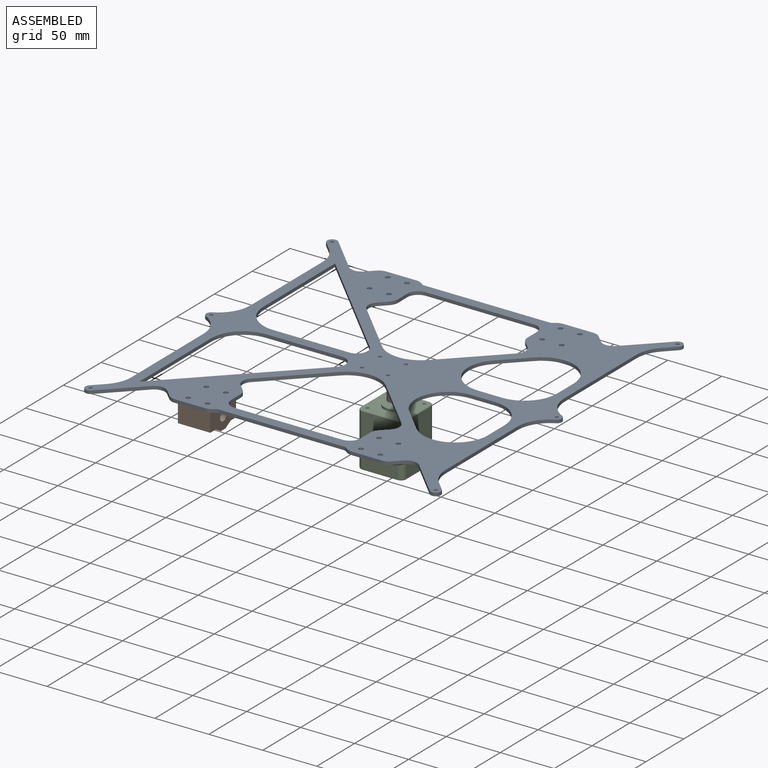
[diagram: assembled view]
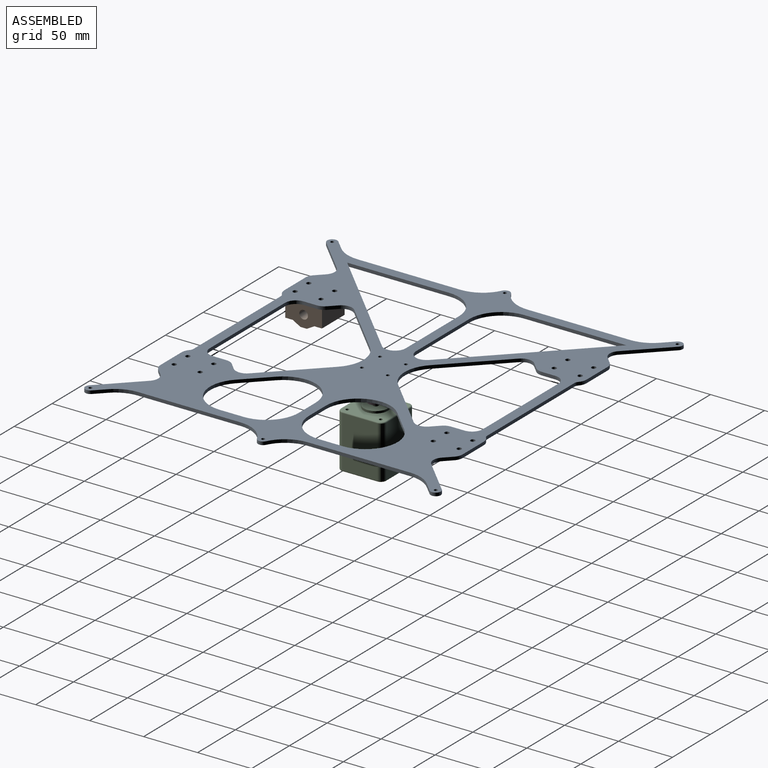
[diagram: assembled view, second angle]
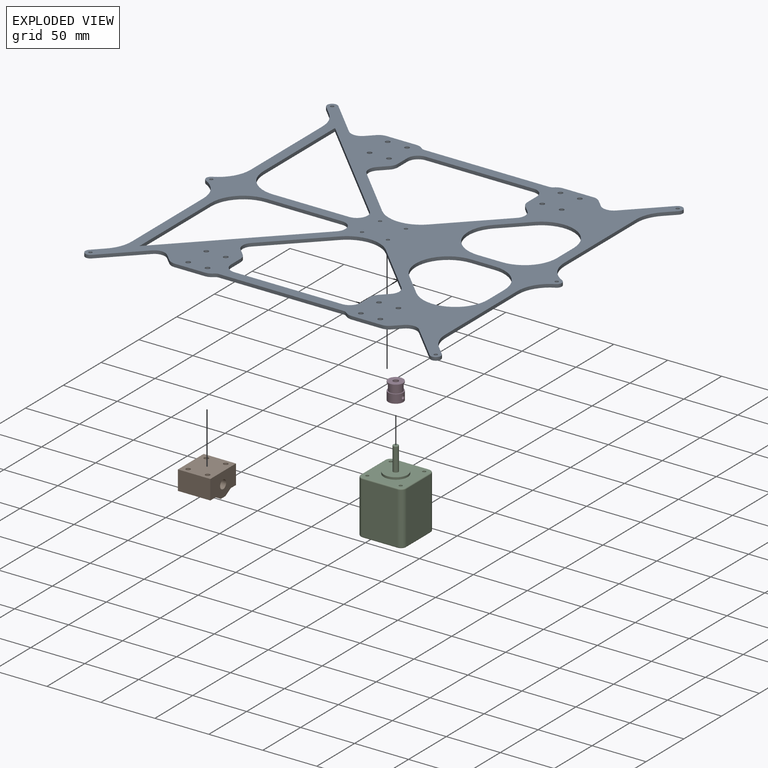
[diagram: exploded view]
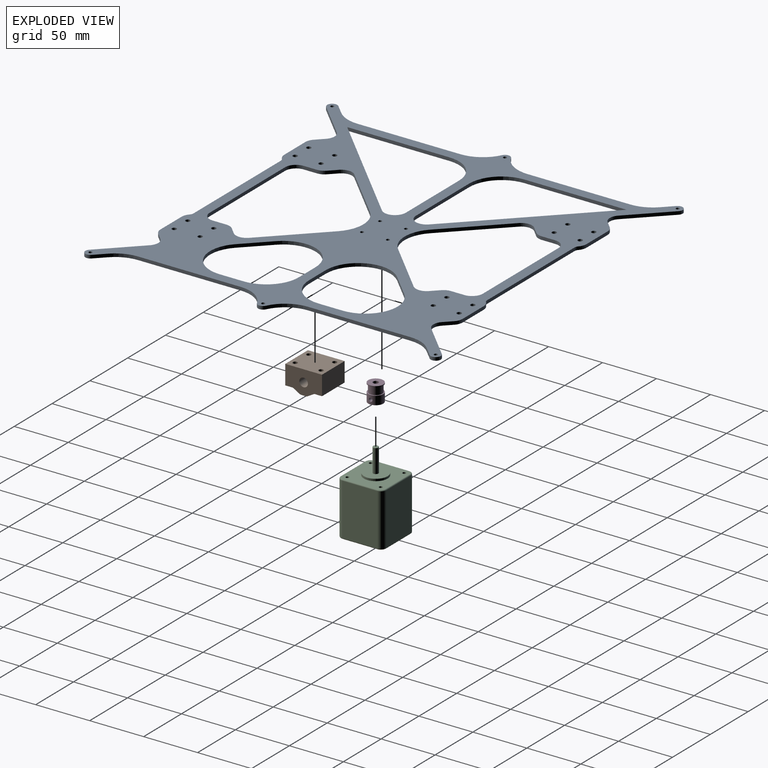
[diagram: exploded view, second angle]
ASSEMBLY  parts=4 mates=3
PART A: 130 faces, bbox 329.4x329.4x3 mm
  f0: plane 22.23x22.23mm, normal (0.71,0.71,0), area 94.3mm2, adj f32,f33,f55,f59
  f1: plane 22.23x3mm, normal (0,-1,0), area 66.7mm2, adj f32,f33,f55,f56
  f2: plane 70.51x3mm, normal (0,-1,0), area 211.5mm2, adj f32,f33,f58,f63
  f3: plane 107.58x107.58mm, normal (-0.71,0.71,0), area 456.4mm2, adj f28,f32,f33,f63
  f4: plane 48.39x48.39mm, normal (0.71,-0.71,0), area 205.3mm2, adj f32,f33,f42,f54
  f5: plane 48.39x48.39mm, normal (-0.71,-0.71,0), area 205.3mm2, adj f32,f33,f50,f54
  f6: plane 6.68x6.68mm, normal (-0.71,0.71,0), area 28.3mm2, adj f32,f33,f49,f50
  f7: plane 12.46x3mm, normal (-1,0,0), area 37.4mm2, adj f32,f33,f49,f53
  f8: plane 100x3mm, normal (0,1,0), area 300mm2, adj f32,f33,f52,f53
  f9: plane 12.46x3mm, normal (1,0,0), area 37.4mm2, adj f32,f33,f44,f52
  f10: plane 32.93x32.93mm, normal (0.71,-0.71,0), area 139.7mm2, adj f30,f32,f33,f43
  f11: plane 6.68x6.68mm, normal (-0.71,-0.71,0), area 28.3mm2, adj f32,f33,f43,f45
  f12: plane 27.86x3mm, normal (0,-1,0), area 83.6mm2, adj f32,f33,f45,f46
  f13: plane 115.6x3mm, normal (0,-1,0), area 346.8mm2, adj f32,f33,f64,f65
  f14: plane 27.86x3mm, normal (0,-1,0), area 83.6mm2, adj f32,f33,f47,f48
  f15: plane 6.68x6.68mm, normal (0.71,-0.71,0), area 28.3mm2, adj f32,f33,f48,f51
  f16: plane 32.93x32.93mm, normal (-0.71,-0.71,0), area 139.7mm2, adj f17,f32,f33,f51
  f17: cylinder r=4.7mm len=8.02mm, axis (0,0,-1), area 44.3mm2, adj f16,f18,f32,f33
  f18: plane 9.14x9.14mm, normal (0.71,0.71,0), area 38.8mm2, adj f17,f32,f33,f61
  f19: plane 95.23x3mm, normal (1,0,0), area 285.7mm2, adj f32,f33,f61,f62
  f20: cylinder r=4.7mm len=8.42mm, axis (0,0,-1), area 31.3mm2, adj f32,f33,f62,f124
  f21: cylinder r=1.6mm len=3.2mm, axis (0,0,-1), area 30.2mm2, adj f32,f33
  f22: cylinder r=1.6mm len=3.2mm, axis (0,0,-1), area 30.2mm2, adj f32,f33
  f23: cylinder r=4.7mm len=8.42mm, axis (0,0,-1), area 31.3mm2, adj f32,f33,f60,f122
  f24: plane 95.23x3mm, normal (-1,0,0), area 285.7mm2, adj f32,f33,f57,f60
  f25: plane 9.14x9.14mm, normal (-0.71,0.71,0), area 38.8mm2, adj f30,f32,f33,f57
  f26: plane 22.23x3mm, normal (-1,0,0), area 66.7mm2, adj f32,f33,f56,f59
  f27: cylinder r=1.6mm len=3.2mm, axis (0,0,-1), area 30.2mm2, adj f32,f33
  f28: plane 94.65x3mm, normal (1,0,0), area 284mm2, adj f3,f32,f33,f58
  f29: plane 6.68x6.68mm, normal (0.71,0.71,0), area 28.3mm2, adj f32,f33,f42,f44
  f30: cylinder r=4.7mm len=8.02mm, axis (0,0,-1), area 44.3mm2, adj f10,f25,f32,f33
  f31: cylinder r=1.6mm len=3.2mm, axis (0,0,-1), area 30.2mm2, adj f32,f33
  f32: plane 329.4x329.4mm, normal (0,0,1), area 33426.8mm2, adj f0,f1,f2,f3,f4,f5,f6,f7
  f33: plane 329.4x329.4mm, normal (0,0,-1), area 33426.8mm2, adj f0,f1,f2,f3,f4,f5,f6,f7
  f34: cylinder r=2.15mm len=4.3mm, axis (0,0,-1), area 40.5mm2, adj f32,f33
  f35: cylinder r=2.15mm len=4.3mm, axis (0,0,-1), area 40.5mm2, adj f32,f33
  f36: cylinder r=2.15mm len=4.3mm, axis (0,0,-1), area 40.5mm2, adj f32,f33
  f37: cylinder r=2.15mm len=4.3mm, axis (0,0,-1), area 40.5mm2, adj f32,f33
  f38: cylinder r=2.15mm len=4.3mm, axis (0,0,-1), area 40.5mm2, adj f32,f33
  f39: cylinder r=2.15mm len=4.3mm, axis (0,0,-1), area 40.5mm2, adj f32,f33
  f40: cylinder r=2.15mm len=4.3mm, axis (0,0,-1), area 40.5mm2, adj f32,f33
  f41: cylinder r=2.15mm len=4.3mm, axis (0,0,-1), area 40.5mm2, adj f32,f33
  f42: cylinder r=10mm len=14.14mm, axis (0,0,-1), area 47.1mm2, adj f4,f29,f32,f33
  f43: cylinder r=10mm len=14.14mm, axis (0,0,1), area 47.1mm2, adj f10,f11,f32,f33
  f44: cylinder r=10mm len=7.07mm, axis (0,0,-1), area 23.6mm2, adj f9,f29,f32,f33
  f45: cylinder r=10mm len=7.07mm, axis (0,0,1), area 23.6mm2, adj f11,f12,f32,f33
  f46: cylinder r=10mm len=6.8mm, axis (0,0,1), area 22.4mm2, adj f12,f32,f33,f64
  f47: cylinder r=10mm len=6.8mm, axis (0,0,-1), area 22.4mm2, adj f14,f32,f33,f65
  f48: cylinder r=10mm len=7.07mm, axis (0,0,-1), area 23.6mm2, adj f14,f15,f32,f33
  f49: cylinder r=10mm len=7.07mm, axis (0,0,1), area 23.6mm2, adj f6,f7,f32,f33
  f50: cylinder r=10mm len=14.14mm, axis (0,0,-1), area 47.1mm2, adj f5,f6,f32,f33
  f51: cylinder r=10mm len=14.14mm, axis (0,0,1), area 47.1mm2, adj f15,f16,f32,f33
  f52: cylinder r=10mm len=10mm, axis (0,0,1), area 47.1mm2, adj f8,f9,f32,f33
  f53: cylinder r=10mm len=10mm, axis (0,0,1), area 47.1mm2, adj f7,f8,f32,f33
  f54: cylinder r=30mm len=42.43mm, axis (0,0,-1), area 141.4mm2, adj f4,f5,f32,f33
  f55: cylinder r=30mm len=51.21mm, axis (0,0,-1), area 212.1mm2, adj f0,f1,f32,f33
  f56: cylinder r=30mm len=30mm, axis (0,0,1), area 141.4mm2, adj f1,f26,f32,f33
  f57: cylinder r=30mm len=21.21mm, axis (0,0,1), area 70.7mm2, adj f24,f25,f32,f33
  f58: cylinder r=30mm len=30mm, axis (0,0,-1), area 141.4mm2, adj f2,f28,f32,f33
  f59: cylinder r=30mm len=51.21mm, axis (0,0,-1), area 212.1mm2, adj f0,f26,f32,f33
  f60: cylinder r=30mm len=26.88mm, axis (0,0,-1), area 100mm2, adj f23,f24,f32,f33
  f61: cylinder r=30mm len=21.21mm, axis (0,0,1), area 70.7mm2, adj f18,f19,f32,f33
  f62: cylinder r=30mm len=26.88mm, axis (0,0,-1), area 100mm2, adj f19,f20,f32,f33
  f63: cylinder r=10mm len=17.07mm, axis (0,0,1), area 70.7mm2, adj f2,f3,f32,f33
  f64: cylinder r=5mm len=3.4mm, axis (0,0,1), area 11.2mm2, adj f13,f32,f33,f46
  f65: cylinder r=5mm len=3.4mm, axis (0,0,-1), area 11.2mm2, adj f13,f32,f33,f47
  f66: cylinder r=1.6mm len=3.2mm, axis (0,0,-1), area 30.2mm2, adj f32,f33
  f67: cylinder r=1.6mm len=3.2mm, axis (0,0,-1), area 30.2mm2, adj f32,f33
  f68: plane 22.23x22.23mm, normal (0.71,-0.71,0), area 94.3mm2, adj f32,f33,f117,f121
  f69: plane 22.23x3mm, normal (0,1,0), area 66.7mm2, adj f32,f33,f117,f118
  f70: plane 70.51x3mm, normal (0,1,0), area 211.5mm2, adj f32,f33,f120,f125
  f71: plane 107.58x107.58mm, normal (-0.71,-0.71,0), area 456.4mm2, adj f32,f33,f92,f125
  f72: plane 48.39x48.39mm, normal (0.71,0.71,0), area 205.3mm2, adj f32,f33,f104,f116
  f73: plane 48.39x48.39mm, normal (-0.71,0.71,0), area 205.3mm2, adj f32,f33,f112,f116
  f74: plane 6.68x6.68mm, normal (-0.71,-0.71,0), area 28.3mm2, adj f32,f33,f111,f112
  f75: plane 12.46x3mm, normal (-1,0,0), area 37.4mm2, adj f32,f33,f111,f115
  f76: plane 100x3mm, normal (0,-1,0), area 300mm2, adj f32,f33,f114,f115
  f77: plane 12.46x3mm, normal (1,0,0), area 37.4mm2, adj f32,f33,f106,f114
  f78: plane 32.93x32.93mm, normal (0.71,0.71,0), area 139.7mm2, adj f32,f33,f94,f105
  f79: plane 6.68x6.68mm, normal (-0.71,0.71,0), area 28.3mm2, adj f32,f33,f105,f107
  f80: plane 27.86x3mm, normal (0,1,0), area 83.6mm2, adj f32,f33,f107,f108
  f81: plane 115.6x3mm, normal (0,1,0), area 346.8mm2, adj f32,f33,f126,f127
  f82: plane 27.86x3mm, normal (0,1,0), area 83.6mm2, adj f32,f33,f109,f110
  f83: plane 6.68x6.68mm, normal (0.71,0.71,0), area 28.3mm2, adj f32,f33,f110,f113
  f84: plane 32.93x32.93mm, normal (-0.71,0.71,0), area 139.7mm2, adj f32,f33,f85,f113
  f85: cylinder r=4.7mm len=8.02mm, axis (0,0,-1), area 44.3mm2, adj f32,f33,f84,f86
  f86: plane 9.14x9.14mm, normal (0.71,-0.71,0), area 38.8mm2, adj f32,f33,f85,f123
  f87: plane 95.23x3mm, normal (1,0,0), area 285.7mm2, adj f32,f33,f123,f124
  f88: plane 95.23x3mm, normal (-1,0,0), area 285.7mm2, adj f32,f33,f119,f122
  f89: plane 9.14x9.14mm, normal (-0.71,-0.71,0), area 38.8mm2, adj f32,f33,f94,f119
  f90: plane 22.23x3mm, normal (-1,0,0), area 66.7mm2, adj f32,f33,f118,f121
  f91: cylinder r=1.6mm len=3.2mm, axis (0,0,-1), area 30.2mm2, adj f32,f33
  f92: plane 94.65x3mm, normal (1,0,0), area 284mm2, adj f32,f33,f71,f120
  f93: plane 6.68x6.68mm, normal (0.71,-0.71,0), area 28.3mm2, adj f32,f33,f104,f106
  f94: cylinder r=4.7mm len=8.02mm, axis (0,0,-1), area 44.3mm2, adj f32,f33,f78,f89
  f95: cylinder r=1.6mm len=3.2mm, axis (0,0,-1), area 30.2mm2, adj f32,f33
  f96: cylinder r=2.15mm len=4.3mm, axis (0,0,-1), area 40.5mm2, adj f32,f33
  f97: cylinder r=2.15mm len=4.3mm, axis (0,0,-1), area 40.5mm2, adj f32,f33
  f98: cylinder r=2.15mm len=4.3mm, axis (0,0,-1), area 40.5mm2, adj f32,f33
  f99: cylinder r=2.15mm len=4.3mm, axis (0,0,-1), area 40.5mm2, adj f32,f33
  f100: cylinder r=2.15mm len=4.3mm, axis (0,0,-1), area 40.5mm2, adj f32,f33
  f101: cylinder r=2.15mm len=4.3mm, axis (0,0,-1), area 40.5mm2, adj f32,f33
  f102: cylinder r=2.15mm len=4.3mm, axis (0,0,-1), area 40.5mm2, adj f32,f33
  f103: cylinder r=2.15mm len=4.3mm, axis (0,0,-1), area 40.5mm2, adj f32,f33
  f104: cylinder r=10mm len=14.14mm, axis (0,0,-1), area 47.1mm2, adj f32,f33,f72,f93
  f105: cylinder r=10mm len=14.14mm, axis (0,0,1), area 47.1mm2, adj f32,f33,f78,f79
  f106: cylinder r=10mm len=7.07mm, axis (0,0,-1), area 23.6mm2, adj f32,f33,f77,f93
  f107: cylinder r=10mm len=7.07mm, axis (0,0,1), area 23.6mm2, adj f32,f33,f79,f80
  f108: cylinder r=10mm len=6.8mm, axis (0,0,1), area 22.4mm2, adj f32,f33,f80,f126
  f109: cylinder r=10mm len=6.8mm, axis (0,0,-1), area 22.4mm2, adj f32,f33,f82,f127
  f110: cylinder r=10mm len=7.07mm, axis (0,0,-1), area 23.6mm2, adj f32,f33,f82,f83
  f111: cylinder r=10mm len=7.07mm, axis (0,0,1), area 23.6mm2, adj f32,f33,f74,f75
  f112: cylinder r=10mm len=14.14mm, axis (0,0,-1), area 47.1mm2, adj f32,f33,f73,f74
  f113: cylinder r=10mm len=14.14mm, axis (0,0,1), area 47.1mm2, adj f32,f33,f83,f84
  f114: cylinder r=10mm len=10mm, axis (0,0,1), area 47.1mm2, adj f32,f33,f76,f77
  f115: cylinder r=10mm len=10mm, axis (0,0,1), area 47.1mm2, adj f32,f33,f75,f76
  f116: cylinder r=30mm len=42.43mm, axis (0,0,-1), area 141.4mm2, adj f32,f33,f72,f73
  f117: cylinder r=30mm len=51.21mm, axis (0,0,-1), area 212.1mm2, adj f32,f33,f68,f69
  f118: cylinder r=30mm len=30mm, axis (0,0,1), area 141.4mm2, adj f32,f33,f69,f90
  f119: cylinder r=30mm len=21.21mm, axis (0,0,1), area 70.7mm2, adj f32,f33,f88,f89
  f120: cylinder r=30mm len=30mm, axis (0,0,-1), area 141.4mm2, adj f32,f33,f70,f92
  f121: cylinder r=30mm len=51.21mm, axis (0,0,-1), area 212.1mm2, adj f32,f33,f68,f90
  f122: cylinder r=30mm len=26.88mm, axis (0,0,-1), area 100mm2, adj f23,f32,f33,f88
  f123: cylinder r=30mm len=21.21mm, axis (0,0,1), area 70.7mm2, adj f32,f33,f86,f87
  f124: cylinder r=30mm len=26.88mm, axis (0,0,-1), area 100mm2, adj f20,f32,f33,f87
  f125: cylinder r=10mm len=17.07mm, axis (0,0,1), area 70.7mm2, adj f32,f33,f70,f71
  f126: cylinder r=5mm len=3.4mm, axis (0,0,1), area 11.2mm2, adj f32,f33,f81,f108
  f127: cylinder r=5mm len=3.4mm, axis (0,0,-1), area 11.2mm2, adj f32,f33,f81,f109
  f128: cylinder r=1.6mm len=3.2mm, axis (0,0,-1), area 30.2mm2, adj f32,f33
  f129: cylinder r=1.6mm len=3.2mm, axis (0,0,-1), area 30.2mm2, adj f32,f33
PART B: 19 faces, bbox 34x30x22 mm
  f0: plane 30x7mm, normal (-0.5,0,-0.87), area 241.9mm2, adj f1,f8,f9,f10
  f1: plane 30x6mm, normal (0,0,-1), area 180mm2, adj f0,f2,f9,f10
  f2: plane 30x7mm, normal (0.5,0,-0.87), area 241.9mm2, adj f1,f3,f9,f10
  f3: plane 30x7mm, normal (0,0,-1), area 210mm2, adj f2,f4,f9,f10
  f4: plane 30x18mm, normal (1,0,0), area 540mm2, adj f3,f5,f9,f10
  f5: plane 34x30mm, normal (0,0,1), area 964.6mm2, adj f4,f6,f9,f10,f12,f14,f16,f18
  f6: plane 30x18mm, normal (-1,0,0), area 540mm2, adj f5,f8,f9,f10
  f7: cylinder r=4mm len=30mm, axis (0,1,0), area 754mm2, adj f9,f10
  f8: plane 30x7mm, normal (0,0,-1), area 210mm2, adj f0,f6,f9,f10
  f9: plane 34x22mm, normal (0,-1,0), area 613.7mm2, adj f0,f1,f2,f3,f4,f5,f6,f7
  f10: plane 34x22mm, normal (0,1,0), area 613.7mm2, adj f0,f1,f2,f3,f4,f5,f6,f7
  f11: cone r=0mm half-angle=59deg, axis (0,0,1), area 16.2mm2, adj f12
  f12: cylinder r=2.1mm len=13.5mm, axis (0,0,1), area 178.1mm2, adj f5,f11
  f13: cone r=0mm half-angle=59deg, axis (0,0,1), area 16.2mm2, adj f14
  f14: cylinder r=2.1mm len=13.5mm, axis (0,0,1), area 178.1mm2, adj f5,f13
  f15: cone r=0mm half-angle=59deg, axis (0,0,1), area 16.2mm2, adj f16
  f16: cylinder r=2.1mm len=13.5mm, axis (0,0,1), area 178.1mm2, adj f5,f15
  f17: cone r=0mm half-angle=59deg, axis (0,0,1), area 16.2mm2, adj f18
  f18: cylinder r=2.1mm len=13.5mm, axis (0,0,1), area 178.1mm2, adj f5,f17
PART C: 39 faces, bbox 43.1x43.1x74 mm
  f0: plane 48x32.3mm, normal (-1,0,0), area 1550.4mm2, adj f19,f22,f24,f37
  f1: plane 48x32.3mm, normal (0,-1,0), area 1550.4mm2, adj f19,f20,f28,f36
  f2: plane 48x32.3mm, normal (1,0,0), area 1550.4mm2, adj f20,f21,f29,f32
  f3: plane 48x32.3mm, normal (0,1,0), area 1550.4mm2, adj f21,f22,f25,f33
  f4: plane 40.3x40.3mm, normal (0,0,-1), area 1610.4mm2, adj f31,f32,f33,f34,f35,f36,f37,f38
  f5: cylinder r=1.5mm len=4.5mm, axis (0,0,-1), area 42.4mm2, adj f9,f13
  f6: cylinder r=1.5mm len=4.5mm, axis (0,0,-1), area 42.4mm2, adj f9,f10
  f7: cylinder r=1.5mm len=4.5mm, axis (0,0,-1), area 42.4mm2, adj f9,f11
  f8: cylinder r=1.5mm len=4.5mm, axis (0,0,-1), area 42.4mm2, adj f9,f12
  f9: plane 40.3x40.3mm, normal (0,0,1), area 1201.9mm2, adj f5,f6,f7,f8,f14,f23,f24,f25
  f10: plane 3x3mm, normal (0,0,1), area 7.1mm2, adj f6
  f11: plane 3x3mm, normal (0,0,1), area 7.1mm2, adj f7
  f12: plane 3x3mm, normal (0,0,1), area 7.1mm2, adj f8
  f13: plane 3x3mm, normal (0,0,1), area 7.1mm2, adj f5
  f14: cylinder r=11mm len=22mm, axis (0,0,-1), area 138.2mm2, adj f9,f15
  f15: plane 22x22mm, normal (0,0,1), area 360.5mm2, adj f14,f16
  f16: cylinder r=2.5mm len=21.5mm, axis (0,0,-1), area 337.7mm2, adj f15,f18
  f17: plane 4x4mm, normal (0,0,1), area 12.6mm2, adj f18
  f18: torus R=2mm, axis (0,0,1), area 11.4mm2, adj f16,f17
  f19: cylinder r=5mm len=48mm, axis (0,0,-1), area 377mm2, adj f0,f1,f26,f38
  f20: cylinder r=5mm len=48mm, axis (0,0,1), area 377mm2, adj f1,f2,f30,f34
  f21: cylinder r=5mm len=48mm, axis (0,0,-1), area 377mm2, adj f2,f3,f27,f31
  f22: cylinder r=5mm len=48mm, axis (0,0,1), area 377mm2, adj f0,f3,f23,f35
  f23: torus R=4mm, axis (0,0,1), area 11.4mm2, adj f9,f22,f24,f25
  f24: cylinder r=1mm len=32.3mm, axis (0,1,0), area 50.7mm2, adj f0,f9,f23,f26
  f25: cylinder r=1mm len=32.3mm, axis (1,0,0), area 50.7mm2, adj f3,f9,f23,f27
  f26: torus R=4mm, axis (0,0,1), area 11.4mm2, adj f9,f19,f24,f28
  f27: torus R=4mm, axis (0,0,1), area 11.4mm2, adj f9,f21,f25,f29
  f28: cylinder r=1mm len=32.3mm, axis (-1,0,0), area 50.7mm2, adj f1,f9,f26,f30
  f29: cylinder r=1mm len=32.3mm, axis (0,-1,0), area 50.7mm2, adj f2,f9,f27,f30
  f30: torus R=4mm, axis (0,0,1), area 11.4mm2, adj f9,f20,f28,f29
  f31: torus R=4mm, axis (0,0,1), area 11.4mm2, adj f4,f21,f32,f33
  f32: cylinder r=1mm len=32.3mm, axis (0,1,0), area 50.7mm2, adj f2,f4,f31,f34
  f33: cylinder r=1mm len=32.3mm, axis (-1,0,0), area 50.7mm2, adj f3,f4,f31,f35
  f34: torus R=4mm, axis (0,0,1), area 11.4mm2, adj f4,f20,f32,f36
  f35: torus R=4mm, axis (0,0,1), area 11.4mm2, adj f4,f22,f33,f37
  f36: cylinder r=1mm len=32.3mm, axis (1,0,0), area 50.7mm2, adj f1,f4,f34,f38
  f37: cylinder r=1mm len=32.3mm, axis (0,-1,0), area 50.7mm2, adj f0,f4,f35,f38
  f38: torus R=4mm, axis (0,0,1), area 11.4mm2, adj f4,f19,f36,f37
PART D: 9 faces, bbox 13.9x13.9x16 mm
  f0: cylinder r=2.5mm len=16mm, axis (0,0,-1), area 242.8mm2, adj f4,f7,f8
  f1: cylinder r=6.95mm len=13.9mm, axis (0,0,-1), area 341.3mm2, adj f6,f7,f8
  f2: cylinder r=6.95mm len=13.9mm, axis (0,0,-1), area 43.7mm2, adj f3,f4
  f3: plane 13.9x13.9mm, normal (0,0,1), area 38.6mm2, adj f2,f5
  f4: plane 13.9x13.9mm, normal (0,0,-1), area 132.1mm2, adj f0,f2
  f5: cylinder r=6mm len=12mm, axis (0,0,-1), area 263.9mm2, adj f3,f6
  f6: plane 13.9x13.9mm, normal (0,0,-1), area 38.6mm2, adj f1,f5
  f7: plane 13.9x13.9mm, normal (0,0,1), area 132.1mm2, adj f0,f1
  f8: cylinder r=1.6mm len=5.03mm, axis (-1,0,0), area 46.6mm2, adj f0,f1
PLACE A t=(-198.49,-160.35,64.09)mm
PLACE B rot(axis=(0,0,1),90deg) t=(-129.99,-116.85,55.09)mm
PLACE C t=(-24.09,3.15,-11.41)mm
PLACE D rot(axis=(1,0,0),180deg) t=(-24.09,3.15,59.59)mm
MATE fastened B.f17 <-> A.f37  axis (0,0,1) through (-105.99,-128.85,66.09)mm
MATE fastened D.f0 <-> C.f14  axis (0,0,1) through (-24.09,3.15,59.59)mm
MATE fastened A.f33 <-> C.f14  axis (0,0,-1) through (-24.09,3.15,66.09)mm
